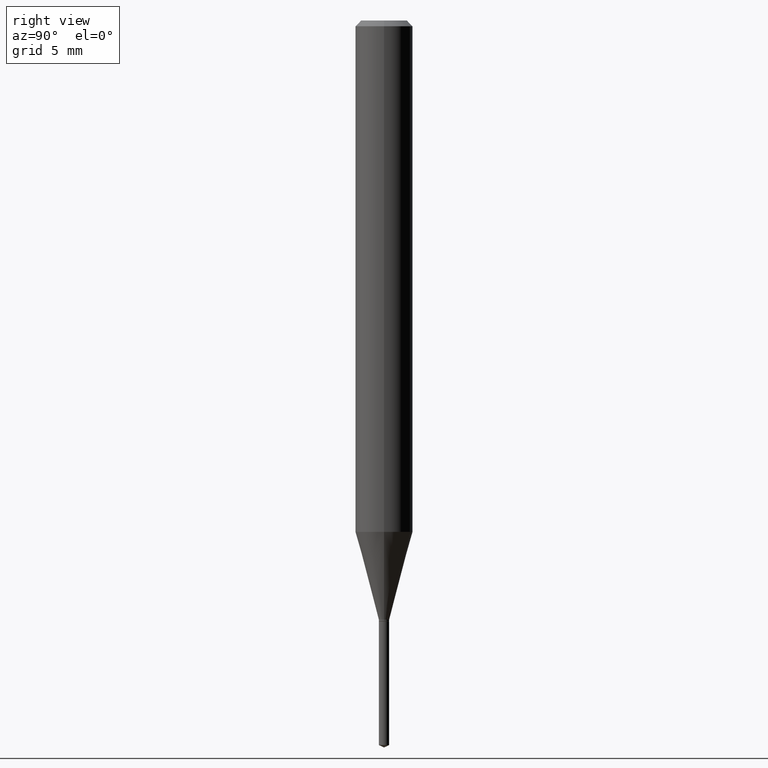
[diagram: clean part render]
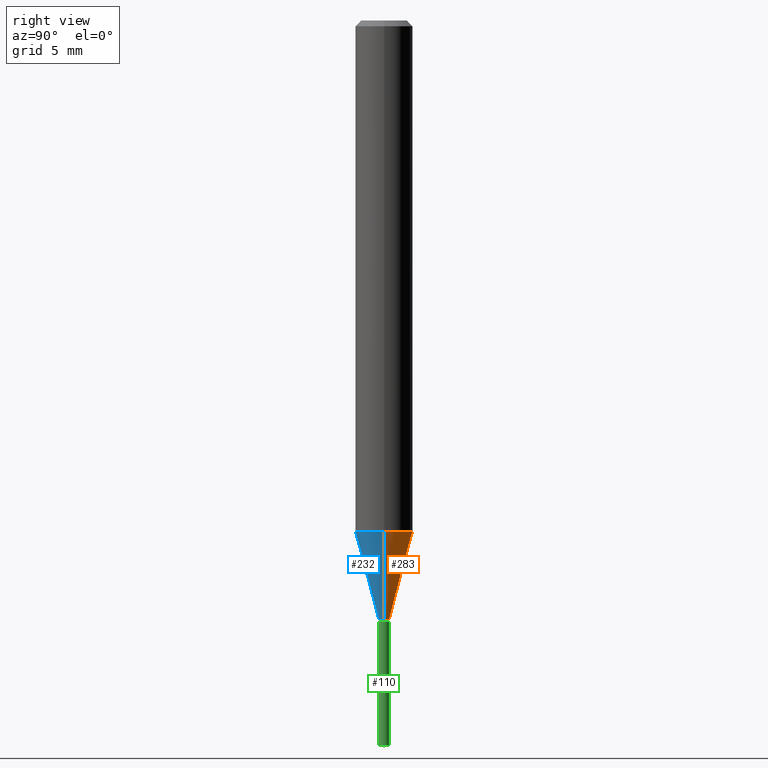
[diagram: same view with three faces highlighted in distinct colors, each labeled with its STEP entity id]
A machine part, right view with three faces highlighted in distinct colors.
Their STEP definitions:

[orange] entity #283 — the highlighted conical surface has half-angle 15 deg.
#14 = EDGE_CURVE ( 'NONE', #134, #233, #60, .T. ) ;
#27 = CARTESIAN_POINT ( 'NONE',  ( 3.015507584906892128E-29, -4.305345638927483284E-15, -1.233100000000000085 ) ) ;
#28 = DIRECTION ( 'NONE',  ( -2.445468806185136597E-29, 3.491481338843145583E-15, 1.000000000000000000 ) ) ;
#29 = VERTEX_POINT ( 'NONE', #345 ) ;
#60 = CIRCLE ( 'NONE', #274, 0.01065000000000000148 ) ;
#67 = CARTESIAN_POINT ( 'NONE',  ( 0.05905000000000013710, -4.087018914733182881E-15, -1.052468740913666378 ) ) ;
#83 = DIRECTION ( 'NONE',  ( -0.2588190451025213501, 5.211531920934551042E-15, 0.9659258262890682012 ) ) ;
#101 = CARTESIAN_POINT ( 'NONE',  ( 2.573779475389317461E-29, -3.674674968615807172E-15, -1.052468740913666378 ) ) ;
#107 = ORIENTED_EDGE ( 'NONE', *, *, #14, .T. ) ;
#109 = ORIENTED_EDGE ( 'NONE', *, *, #421, .T. ) ;
#126 = CARTESIAN_POINT ( 'NONE',  ( 3.015507584906892128E-29, -4.305345638927483284E-15, -1.233100000000000085 ) ) ;
#134 = VERTEX_POINT ( 'NONE', #430 ) ;
#146 = AXIS2_PLACEMENT_3D ( 'NONE', #27, #28, #484 ) ;
#159 = CARTESIAN_POINT ( 'NONE',  ( -0.01065000000000000148, -4.234386337376470725E-15, -1.233100000000000085 ) ) ;
#160 = DIRECTION ( 'NONE',  ( -2.445468806185136597E-29, 3.491481338843145583E-15, 1.000000000000000000 ) ) ;
#166 = VECTOR ( 'NONE', #271, 39.37007874015747433 ) ;
#187 = EDGE_CURVE ( 'NONE', #203, #29, #478, .T. ) ;
#203 = VERTEX_POINT ( 'NONE', #67 ) ;
#205 = ORIENTED_EDGE ( 'NONE', *, *, #187, .F. ) ;
#233 = VERTEX_POINT ( 'NONE', #159 ) ;
#271 = DIRECTION ( 'NONE',  ( 0.2588190451025213501, 1.565188264969621968E-15, 0.9659258262890682012 ) ) ;
#273 = LINE ( 'NONE', #338, #295 ) ;
#274 = AXIS2_PLACEMENT_3D ( 'NONE', #126, #160, #278 ) ;
#278 = DIRECTION ( 'NONE',  ( 1.000000000000000000, -6.982962677686291165E-15, 0.000000000000000000 ) ) ;
#283 = ADVANCED_FACE ( 'NONE', ( #340 ), #399, .T. ) ;
#295 = VECTOR ( 'NONE', #83, 39.37007874015747433 ) ;
#303 = CARTESIAN_POINT ( 'NONE',  ( 0.01065000000000000148, -4.379714191444842492E-15, -1.233100000000000085 ) ) ;
#307 = LINE ( 'NONE', #303, #166 ) ;
#325 = DIRECTION ( 'NONE',  ( 1.000000000000000000, -6.982962677686264344E-15, 0.000000000000000000 ) ) ;
#338 = CARTESIAN_POINT ( 'NONE',  ( -0.01065000000000000148, -4.229672837569032271E-15, -1.233100000000000085 ) ) ;
#340 = FACE_OUTER_BOUND ( 'NONE', #486, .T. ) ;
#345 = CARTESIAN_POINT ( 'NONE',  ( -0.05905000000000013710, -3.255099483149467285E-15, -1.052468740913666378 ) ) ;
#385 = ORIENTED_EDGE ( 'NONE', *, *, #482, .F. ) ;
#393 = DIRECTION ( 'NONE',  ( -2.445468806185136597E-29, 3.491481338843145583E-15, 1.000000000000000000 ) ) ;
#399 = CONICAL_SURFACE ( 'NONE', #146, 0.01065000000000000148, 0.2617993877991500740 ) ;
#421 = EDGE_CURVE ( 'NONE', #233, #29, #273, .T. ) ;
#430 = CARTESIAN_POINT ( 'NONE',  ( 0.01065000000000000148, -4.379714191444842492E-15, -1.233100000000000085 ) ) ;
#436 = AXIS2_PLACEMENT_3D ( 'NONE', #101, #393, #325 ) ;
#478 = CIRCLE ( 'NONE', #436, 0.05905000000000013710 ) ;
#482 = EDGE_CURVE ( 'NONE', #134, #203, #307, .T. ) ;
#484 = DIRECTION ( 'NONE',  ( 1.000000000000000000, -6.982962677686291165E-15, 0.000000000000000000 ) ) ;
#486 = EDGE_LOOP ( 'NONE', ( #107, #109, #205, #385 ) ) ;

[blue] entity #232 — the highlighted conical surface has half-angle 15 deg.
#29 = VERTEX_POINT ( 'NONE', #345 ) ;
#30 = AXIS2_PLACEMENT_3D ( 'NONE', #424, #305, #381 ) ;
#44 = DIRECTION ( 'NONE',  ( 1.000000000000000000, -6.982962677686291165E-15, 0.000000000000000000 ) ) ;
#67 = CARTESIAN_POINT ( 'NONE',  ( 0.05905000000000013710, -4.087018914733182881E-15, -1.052468740913666378 ) ) ;
#83 = DIRECTION ( 'NONE',  ( -0.2588190451025213501, 5.211531920934551042E-15, 0.9659258262890682012 ) ) ;
#133 = ORIENTED_EDGE ( 'NONE', *, *, #251, .T. ) ;
#134 = VERTEX_POINT ( 'NONE', #430 ) ;
#140 = FACE_OUTER_BOUND ( 'NONE', #376, .T. ) ;
#159 = CARTESIAN_POINT ( 'NONE',  ( -0.01065000000000000148, -4.234386337376470725E-15, -1.233100000000000085 ) ) ;
#166 = VECTOR ( 'NONE', #271, 39.37007874015747433 ) ;
#170 = ORIENTED_EDGE ( 'NONE', *, *, #364, .F. ) ;
#180 = AXIS2_PLACEMENT_3D ( 'NONE', #448, #260, #44 ) ;
#203 = VERTEX_POINT ( 'NONE', #67 ) ;
#211 = ORIENTED_EDGE ( 'NONE', *, *, #482, .T. ) ;
#213 = CARTESIAN_POINT ( 'NONE',  ( 3.015507584906892128E-29, -4.305345638927483284E-15, -1.233100000000000085 ) ) ;
#221 = DIRECTION ( 'NONE',  ( 1.000000000000000000, -6.982962677686291165E-15, 0.000000000000000000 ) ) ;
#224 = CIRCLE ( 'NONE', #180, 0.01065000000000000148 ) ;
#232 = ADVANCED_FACE ( 'NONE', ( #140 ), #249, .T. ) ;
#233 = VERTEX_POINT ( 'NONE', #159 ) ;
#249 = CONICAL_SURFACE ( 'NONE', #420, 0.01065000000000000148, 0.2617993877991500740 ) ;
#251 = EDGE_CURVE ( 'NONE', #233, #134, #224, .T. ) ;
#260 = DIRECTION ( 'NONE',  ( -2.445468806185136597E-29, 3.491481338843145583E-15, 1.000000000000000000 ) ) ;
#271 = DIRECTION ( 'NONE',  ( 0.2588190451025213501, 1.565188264969621968E-15, 0.9659258262890682012 ) ) ;
#273 = LINE ( 'NONE', #338, #295 ) ;
#295 = VECTOR ( 'NONE', #83, 39.37007874015747433 ) ;
#303 = CARTESIAN_POINT ( 'NONE',  ( 0.01065000000000000148, -4.379714191444842492E-15, -1.233100000000000085 ) ) ;
#305 = DIRECTION ( 'NONE',  ( -2.445468806185136597E-29, 3.491481338843145583E-15, 1.000000000000000000 ) ) ;
#307 = LINE ( 'NONE', #303, #166 ) ;
#338 = CARTESIAN_POINT ( 'NONE',  ( -0.01065000000000000148, -4.229672837569032271E-15, -1.233100000000000085 ) ) ;
#345 = CARTESIAN_POINT ( 'NONE',  ( -0.05905000000000013710, -3.255099483149467285E-15, -1.052468740913666378 ) ) ;
#364 = EDGE_CURVE ( 'NONE', #29, #203, #469, .T. ) ;
#370 = DIRECTION ( 'NONE',  ( -2.445468806185136597E-29, 3.491481338843145583E-15, 1.000000000000000000 ) ) ;
#376 = EDGE_LOOP ( 'NONE', ( #435, #133, #211, #170 ) ) ;
#381 = DIRECTION ( 'NONE',  ( 1.000000000000000000, -6.982962677686264344E-15, 0.000000000000000000 ) ) ;
#420 = AXIS2_PLACEMENT_3D ( 'NONE', #213, #370, #221 ) ;
#421 = EDGE_CURVE ( 'NONE', #233, #29, #273, .T. ) ;
#424 = CARTESIAN_POINT ( 'NONE',  ( 2.573779475389317461E-29, -3.674674968615807172E-15, -1.052468740913666378 ) ) ;
#430 = CARTESIAN_POINT ( 'NONE',  ( 0.01065000000000000148, -4.379714191444842492E-15, -1.233100000000000085 ) ) ;
#435 = ORIENTED_EDGE ( 'NONE', *, *, #421, .F. ) ;
#448 = CARTESIAN_POINT ( 'NONE',  ( 3.015507584906892128E-29, -4.305345638927483284E-15, -1.233100000000000085 ) ) ;
#469 = CIRCLE ( 'NONE', #30, 0.05905000000000013710 ) ;
#482 = EDGE_CURVE ( 'NONE', #134, #203, #307, .T. ) ;

[green] entity #110 — the highlighted cylindrical surface (edge-blend (fillet) strip) has radius 0.2705 mm, axis along (-0, 0, 1).
#2 = LINE ( 'NONE', #223, #204 ) ;
#39 = CARTESIAN_POINT ( 'NONE',  ( -7.436855251732226660E-17, -0.01065000000000520565, -1.491133823440649264 ) ) ;
#70 = CIRCLE ( 'NONE', #104, 0.01065000000000000148 ) ;
#84 = VECTOR ( 'NONE', #396, 39.37007874015748143 ) ;
#95 = DIRECTION ( 'NONE',  ( -2.445453492125453683E-29, 3.491503269448233447E-15, 1.000000000000000000 ) ) ;
#97 = DIRECTION ( 'NONE',  ( -6.982962677686265922E-15, -1.000000000000000000, 0.000000000000000000 ) ) ;
#104 = AXIS2_PLACEMENT_3D ( 'NONE', #323, #361, #97 ) ;
#110 = ADVANCED_FACE ( 'NONE', ( #433 ), #177, .T. ) ;
#117 = EDGE_CURVE ( 'NONE', #442, #408, #70, .T. ) ;
#121 = VERTEX_POINT ( 'NONE', #216 ) ;
#155 = DIRECTION ( 'NONE',  ( -2.445453492125453683E-29, 3.491503269448233447E-15, 1.000000000000000000 ) ) ;
#164 = EDGE_CURVE ( 'NONE', #408, #208, #289, .T. ) ;
#177 = CYLINDRICAL_SURFACE ( 'NONE', #190, 0.01065000000000000148 ) ;
#184 = CIRCLE ( 'NONE', #373, 0.01065000000000000148 ) ;
#190 = AXIS2_PLACEMENT_3D ( 'NONE', #296, #95, #257 ) ;
#195 = ORIENTED_EDGE ( 'NONE', *, *, #117, .T. ) ;
#204 = VECTOR ( 'NONE', #155, 39.37007874015748143 ) ;
#208 = VERTEX_POINT ( 'NONE', #319 ) ;
#216 = CARTESIAN_POINT ( 'NONE',  ( -7.436855251732849120E-17, -0.01065000000000431574, -1.236299999999999955 ) ) ;
#223 = CARTESIAN_POINT ( 'NONE',  ( -7.436855251732849120E-17, -0.01065000000000431574, -1.236299999999999955 ) ) ;
#227 = DIRECTION ( 'NONE',  ( -6.982962677686265922E-15, -1.000000000000000000, 0.000000000000000000 ) ) ;
#257 = DIRECTION ( 'NONE',  ( -6.982962677686265922E-15, -1.000000000000000000, 0.000000000000000000 ) ) ;
#266 = CARTESIAN_POINT ( 'NONE',  ( 7.567280135848714047E-17, 0.01064999999999479557, -1.491133823440649264 ) ) ;
#289 = LINE ( 'NONE', #353, #84 ) ;
#296 = CARTESIAN_POINT ( 'NONE',  ( 3.023333085086683703E-29, -4.316518379211780118E-15, -1.236299999999999955 ) ) ;
#306 = ORIENTED_EDGE ( 'NONE', *, *, #464, .F. ) ;
#319 = CARTESIAN_POINT ( 'NONE',  ( 7.567280135848718978E-17, 0.01064999999999568549, -1.236299999999999955 ) ) ;
#323 = CARTESIAN_POINT ( 'NONE',  ( 3.646517348531301353E-29, -5.206271506920801181E-15, -1.491133823440649264 ) ) ;
#337 = CARTESIAN_POINT ( 'NONE',  ( 3.023333085086683703E-29, -4.316518379211780118E-15, -1.236299999999999955 ) ) ;
#353 = CARTESIAN_POINT ( 'NONE',  ( 7.567280135848090354E-17, 0.01064999999999568549, -1.236299999999999955 ) ) ;
#361 = DIRECTION ( 'NONE',  ( -2.445453492125453683E-29, 3.491503269448233447E-15, 1.000000000000000000 ) ) ;
#373 = AXIS2_PLACEMENT_3D ( 'NONE', #337, #489, #227 ) ;
#380 = ORIENTED_EDGE ( 'NONE', *, *, #164, .T. ) ;
#396 = DIRECTION ( 'NONE',  ( -2.445453492125453683E-29, 3.491503269448233447E-15, 1.000000000000000000 ) ) ;
#406 = EDGE_LOOP ( 'NONE', ( #195, #380, #306, #490 ) ) ;
#408 = VERTEX_POINT ( 'NONE', #266 ) ;
#433 = FACE_OUTER_BOUND ( 'NONE', #406, .T. ) ;
#442 = VERTEX_POINT ( 'NONE', #39 ) ;
#464 = EDGE_CURVE ( 'NONE', #121, #208, #184, .T. ) ;
#474 = EDGE_CURVE ( 'NONE', #442, #121, #2, .T. ) ;
#489 = DIRECTION ( 'NONE',  ( -2.445453492125453683E-29, 3.491503269448233447E-15, 1.000000000000000000 ) ) ;
#490 = ORIENTED_EDGE ( 'NONE', *, *, #474, .F. ) ;